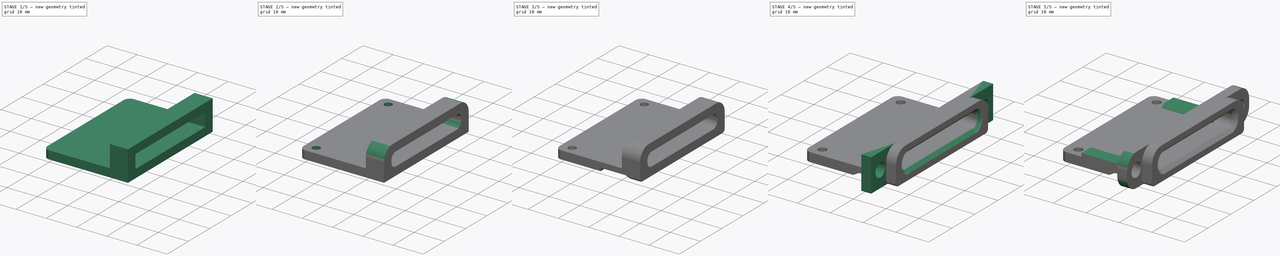
[diagram: build sequence overview — one tinted view per stage of 5, left to right]
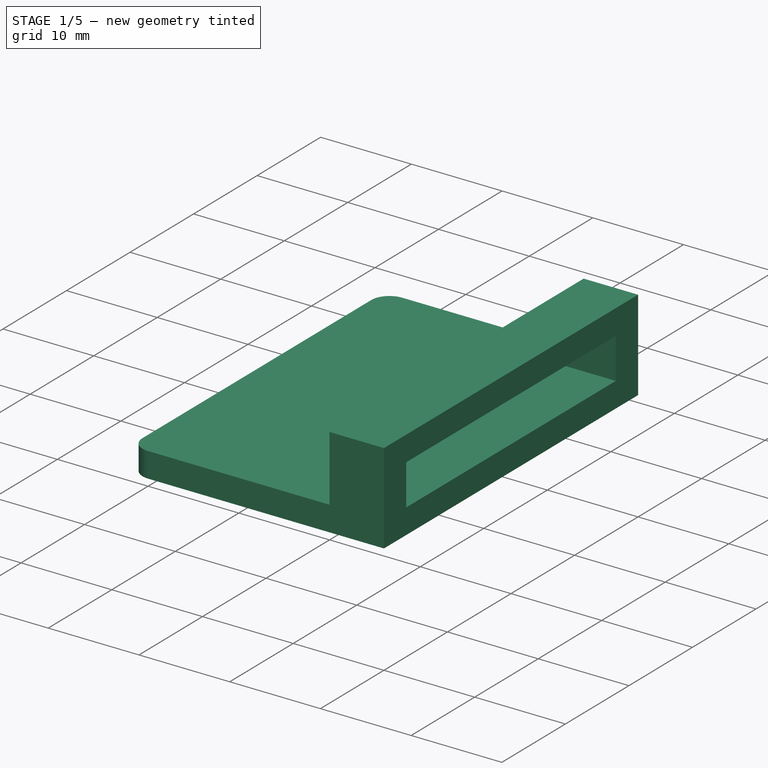
[diagram: stage 1 of 5 — iso view after this stage's code; geometry added in this stage tinted green]
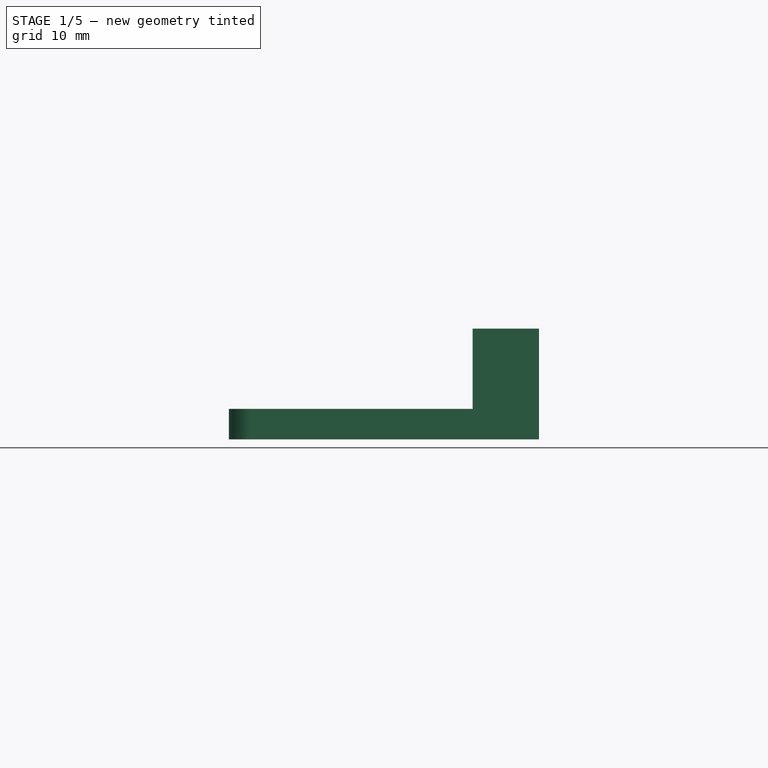
[diagram: stage 1 of 5 — front view after this stage's code; geometry added in this stage tinted green]
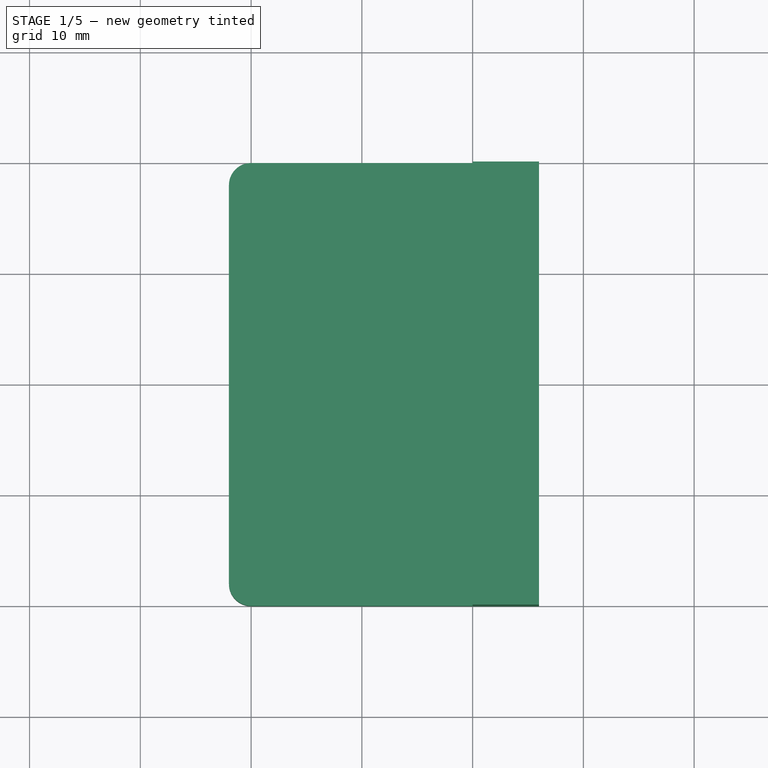
[diagram: stage 1 of 5 — top view after this stage's code; geometry added in this stage tinted green]
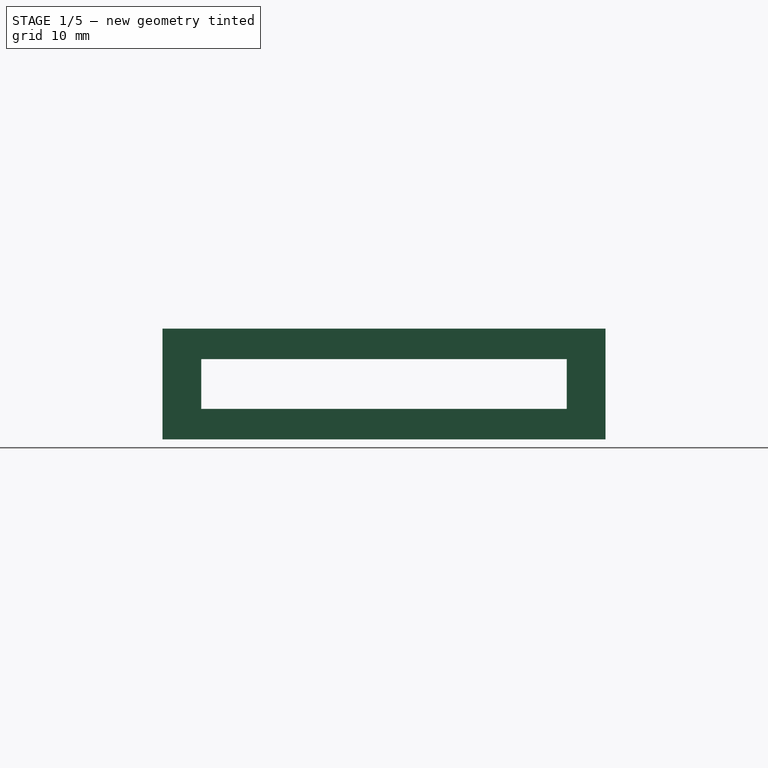
[diagram: stage 1 of 5 — right view after this stage's code; geometry added in this stage tinted green]
FCSTD DOCUMENT  (FreeCAD 2024.113R14555 (Git shallow))
Label: SD-Card-Adaptator
License: All rights reserved
LicenseURL: https://en.wikipedia.org/wiki/All_rights_reserved
objects: Sketcher::SketchObject×6, PartDesign::Fillet×5, PartDesign::Pad×4, Part::Feature×3, App::Part×2, Part::SubShapeBinder×2, PartDesign::Pocket×2, PartDesign::Draft×2, PartDesign::Chamfer×2, PartDesign::Body×1
note: 63 computed .brp shape members not serialized (recipe doc carries the construction recipe); baked Part::Feature solids carry a one-line shape summary decoded from their .brp

FEATURE [Part::Feature] Compound  label="Micro SD to SD Card Extension Adapter Cable"
  FixShape = 1
  InvalidShape = false
  Placement = pos=(22.6,-1.7808,1.15) rot=(0.707107,-0.707107,0;3.14159rad)
  TreeRank = 6
  ValidateShape = false
  shape: bbox 136.9 x 21 x 1.702 mm, 54 faces, 4 solids (baked)
FEATURE [Part::Feature] Solid  label="Micro SD to SD Card Extension Adapter Cable - Part 01"
  FixShape = 1
  InvalidShape = false
  Placement = pos=(0,0,0) rot=(0,0,1;1.5708rad)
  TreeRank = 7
  ValidateShape = false
  shape: bbox 8.5 x 30.8 x 1.901 mm, 25 faces (baked)
FEATURE [Part::Feature] Compound001  label="SD Card Slot"
  FixShape = 1
  InvalidShape = false
  Placement = pos=(-2.82909,-1.1152,-46.9) rot=(0,0,1;0rad)
  TreeRank = 8
  ValidateShape = false
  shape: bbox 36.5 x 39.5 x 3.6 mm, 614 faces, 14 solids (baked)
FEATURE [App::Part] Part  label="Micro SD to SD Card Extension Adapter Cable"
  ClaimAllChildren = false
  ExportMode = 1
  Group = -> [Compound,Solid,Compound001]
  Origin = -> Origin
  TreeRank = 10
  _ExportChildren = -> [Compound,Solid,Compound001]
  _GroupVersion = 1
FEATURE [Sketcher::SketchObject] Sketch
  ArcFitTolerance = 1e-06
  AttachmentSupport = -> [YZ_Plane001]
  ExternalBSplineMaxDegree = 5
  ExternalBSplineTolerance = 0.0001
  FixShape = 1
  FullyConstrained = true
  InternalTolerance = 1e-06
  InvalidShape = false
  MakeInternals = false
  MapMode = 5
  Placement = pos=(0,0,0) rot=(0.57735,0.57735,0.57735;2.0944rad)
  Support = -> [YZ_Plane001]
  TreeRank = 33
  ValidateShape = false
  sketch-geometry (10):
    g0: LineSegment StartX=-16.5 StartY=2.25 StartZ=0 EndX=-16.5 EndY=-2.25 EndZ=0
    g1: LineSegment StartX=-16.5 StartY=-2.25 StartZ=0 EndX=16.5 EndY=-2.25 EndZ=0
    g2: LineSegment StartX=16.5 StartY=-2.25 StartZ=0 EndX=16.5 EndY=2.25 EndZ=0
    g3: LineSegment StartX=16.5 StartY=2.25 StartZ=0 EndX=-16.5 EndY=2.25 EndZ=0
    g4: GeomPoint [constr] X=0 Y=0 Z=0
    g5: LineSegment StartX=-20 StartY=-5 StartZ=0 EndX=-20 EndY=5 EndZ=0
    g6: LineSegment StartX=-20 StartY=5 StartZ=0 EndX=20 EndY=5 EndZ=0
    g7: LineSegment StartX=20 StartY=5 StartZ=0 EndX=20 EndY=-5 EndZ=0
    g8: LineSegment StartX=20 StartY=-5 StartZ=0 EndX=-20 EndY=-5 EndZ=0
    g9: GeomPoint [constr] X=0 Y=0 Z=0
  constraints (24):
    c: Coincident(g0,g1)
    c: Coincident(g1,g2)
    c: Coincident(g2,g3)
    c: Coincident(g3,g0)
    c: Horizontal(g1)
    c: Horizontal(g3)
    c: Vertical(g0)
    c: Vertical(g2)
    c: Symmetric(g1,g0,g4)
    c: Coincident(g4,g-1)
    c: DistanceY(g2,g2) = 4.5
    c: DistanceX(g3,g3) = 33
    c: Coincident(g5,g6)
    c: Coincident(g6,g7)
    c: Coincident(g7,g8)
    c: Coincident(g8,g5)
    c: Horizontal(g6)
    c: Horizontal(g8)
    c: Vertical(g5)
    c: Vertical(g7)
    c: Symmetric(g6,g5,g9)
    c: Coincident(g9,g4)
    c: DistanceX(g6,g6) = 40
    c: DistanceY(g7,g7) = 10
FEATURE [PartDesign::Pad] Pad
  AddSubType = 0
  AlongSketchNormal = false
  AutoTaperInnerAngle = true
  CheckUpToFaceLimits = true
  ClaimChildren = false
  Direction = (1,-2e-16,3e-16)
  Fit = 0
  FitJoin = 0
  FixShape = 1
  InnerFit = 0
  InnerFitJoin = 0
  InvalidShape = false
  Length = 6
  Length2 = 10
  Linearize = true
  NewSolid = false
  Profile = -> Sketch
  ReferenceAxis = -> Sketch [N_Axis]
  Refine = true
  Suppress = false
  TaperInnerAngle = 0
  TaperInnerAngleRev = 0
  TreeRank = 34
  Type = 0
  ValidateShape = true
  _ProfileBasedVersion = 1
FEATURE [Sketcher::SketchObject] Sketch001
  ArcFitTolerance = 1e-06
  AttachmentSupport = -> [Pad]
  ExternalBSplineMaxDegree = 5
  ExternalBSplineTolerance = 0.0001
  ExternalGeometry = -> [Pad]
  FixShape = 1
  FullyConstrained = true
  InternalTolerance = 1e-06
  InvalidShape = false
  MakeInternals = false
  MapMode = 5
  Placement = pos=(0,0,0) rot=(0.57735,-0.57735,-0.57735;2.0944rad)
  Support = -> [Pad]
  TreeRank = 35
  ValidateShape = false
  sketch-geometry (4):
    g0: LineSegment StartX=-20 StartY=-5 StartZ=0 EndX=20 EndY=-5 EndZ=0
    g1: LineSegment StartX=20 StartY=-5 StartZ=0 EndX=20 EndY=-2.25 EndZ=0
    g2: LineSegment StartX=20 StartY=-2.25 StartZ=0 EndX=-20 EndY=-2.25 EndZ=0
    g3: LineSegment StartX=-20 StartY=-2.25 StartZ=0 EndX=-20 EndY=-5 EndZ=0
  constraints (10):
    c: Coincident(g0,g1)
    c: Coincident(g1,g2)
    c: Coincident(g2,g3)
    c: Coincident(g3,g0)
    c: Horizontal(g2)
    c: Vertical(g1)
    c: Vertical(g3)
    c: Coincident(g0,g-3)
    c: Coincident(g-3,g0)
    c: DistanceY(g1,g1) = 2.75
FEATURE [PartDesign::Pad] Pad001
  AddSubType = 0
  AlongSketchNormal = false
  AutoTaperInnerAngle = true
  BaseFeature = -> Pad
  CheckUpToFaceLimits = true
  ClaimChildren = false
  Direction = (-1,1e-16,-1e-16)
  Fit = 0
  FitJoin = 0
  FixShape = 1
  InnerFit = 0
  InnerFitJoin = 0
  InvalidShape = false
  Length = 22
  Length2 = 10
  Linearize = true
  NewSolid = false
  Profile = -> Sketch001
  ReferenceAxis = -> Sketch001 [N_Axis]
  Refine = true
  Suppress = false
  TaperInnerAngle = 0
  TaperInnerAngleRev = 0
  TreeRank = 36
  Type = 0
  ValidateShape = true
  _ProfileBasedVersion = 1
FEATURE [PartDesign::Fillet] Fillet
  AddSubType = 0
  Base = -> Pad001 [Edge24,Edge28]
  BaseFeature = -> Pad001
  FixShape = 1
  InvalidShape = false
  NewSolid = false
  Radius = 2
  Refine = true
  SupportTransform = false
  Suppress = false
  TreeRank = 37
  UseAllEdges = false
  ValidateShape = true
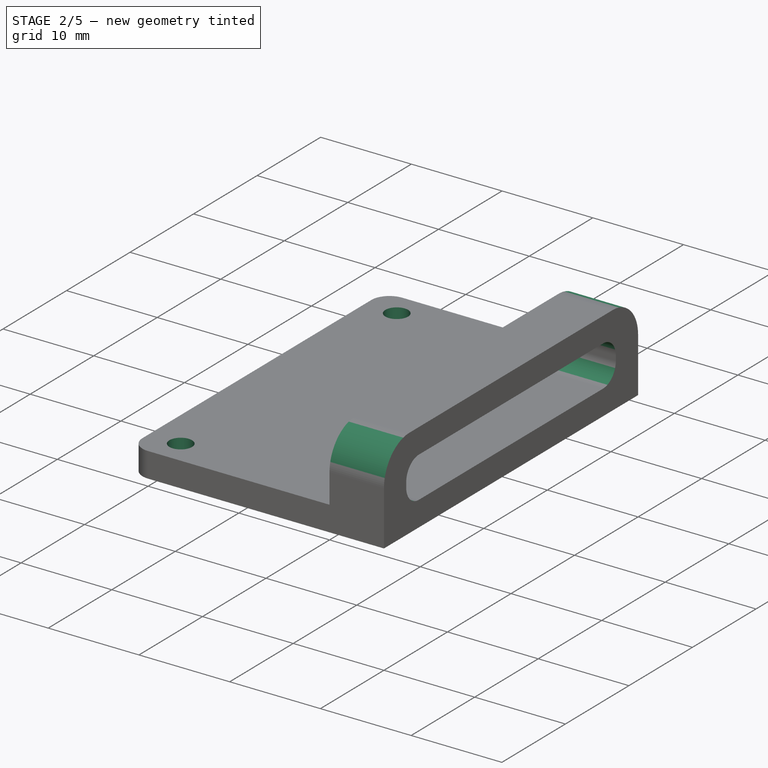
[diagram: stage 2 of 5 — iso view after this stage's code; geometry added in this stage tinted green]
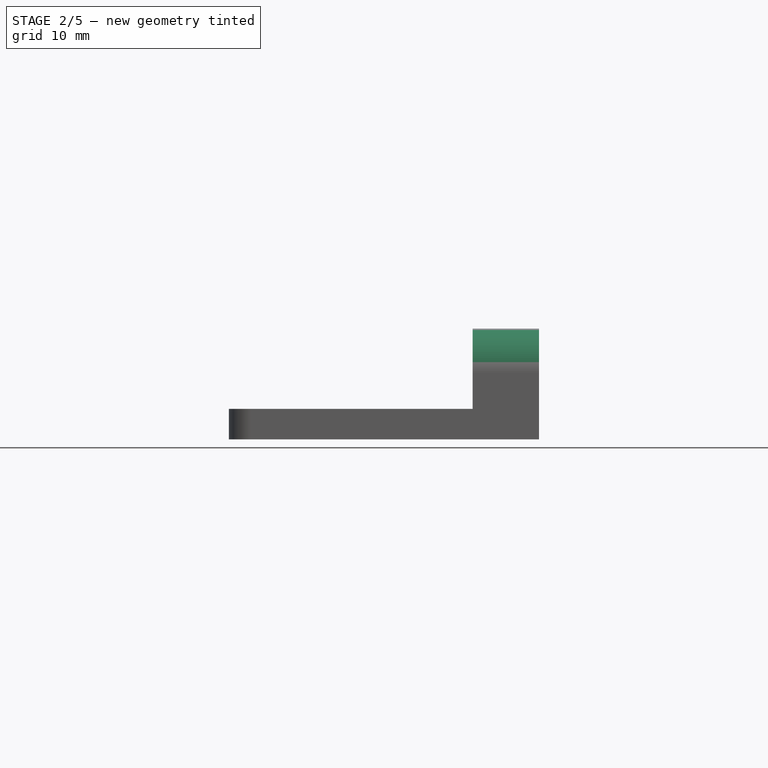
[diagram: stage 2 of 5 — front view after this stage's code; geometry added in this stage tinted green]
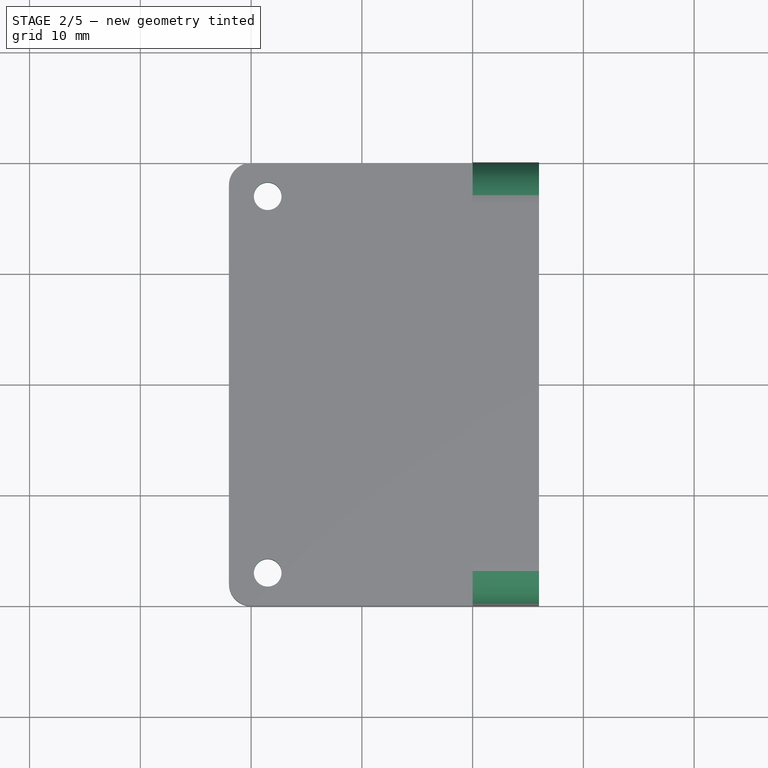
[diagram: stage 2 of 5 — top view after this stage's code; geometry added in this stage tinted green]
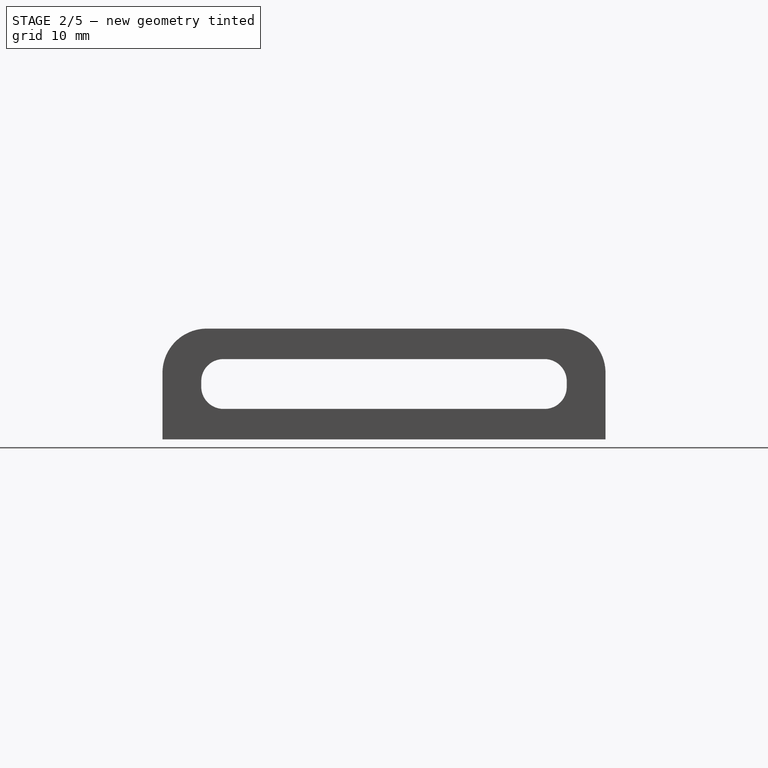
[diagram: stage 2 of 5 — right view after this stage's code; geometry added in this stage tinted green]
FEATURE [Part::SubShapeBinder] Import  label="Import(SD Card Slot)"
  BindCopyOnChange = 0
  BindMode = 0
  ClaimChildren = false
  Context = -> Part001 [Body.Import.]
  EdgeTolerance = 1e-06
  FillStyle = 0
  FixShape = 1
  Fuse = false
  InvalidShape = false
  MakeFace = false
  MergeEdges = true
  OffsetFill = false
  OffsetIntersection = false
  OffsetJoinType = 0
  OffsetOpenResult = false
  Outline = false
  PartialLoad = false
  Relative = true
  SplitEdges = false
  Support = -> [Part[Compound001.Edge1450]]
  TightBound = false
  TreeRank = 39
  ValidateShape = false
  _Version = 8
FEATURE [Sketcher::SketchObject] Sketch002
  ArcFitTolerance = 1e-06
  ExternalBSplineMaxDegree = 5
  ExternalBSplineTolerance = 0.0001
  ExternalGeometry = -> [Import]
  FixShape = 1
  FullyConstrained = true
  InternalTolerance = 1e-06
  InvalidShape = false
  MakeInternals = false
  Placement = pos=(2e-16,-2e-16,-2.25) rot=(0,0,1;0rad)
  TreeRank = 38
  ValidateShape = false
  sketch-geometry (2):
    g0: Circle CenterX=-18.5 CenterY=17 CenterZ=0 NormalX=0 NormalY=0 NormalZ=1 AngleXU=0 Radius=1.25
    g1: Circle CenterX=-18.5 CenterY=-17 CenterZ=0 NormalX=0 NormalY=0 NormalZ=1 AngleXU=0 Radius=1.25
  constraints (4):
    c: Coincident(g0,g-3)
    c: Symmetric(g1,g0,g-1)
    c: Equal(g0,g1)
    c: Diameter(g0) = 2.5
FEATURE [PartDesign::Fillet] Fillet001
  AddSubType = 0
  Base = -> Fillet [Edge5,Edge27]
  BaseFeature = -> Fillet
  FixShape = 1
  InvalidShape = false
  NewSolid = false
  Radius = 4
  Refine = true
  SupportTransform = false
  Suppress = false
  TreeRank = 40
  UseAllEdges = false
  ValidateShape = true
FEATURE [PartDesign::Fillet] Fillet002
  AddSubType = 0
  Base = -> Fillet001 [Edge38,Edge40,Edge24,Edge20]
  BaseFeature = -> Fillet001
  FixShape = 1
  InvalidShape = false
  NewSolid = false
  Radius = 2
  Refine = true
  SupportTransform = false
  Suppress = false
  TreeRank = 41
  UseAllEdges = false
  ValidateShape = true
FEATURE [PartDesign::Pocket] Pocket
  AddSubType = 1
  AlongSketchNormal = false
  AutoTaperInnerAngle = true
  BaseFeature = -> Fillet002
  CheckUpToFaceLimits = true
  ClaimChildren = false
  Direction = (1e-16,-1e-16,-1)
  Fit = 0
  FitJoin = 0
  FixShape = 1
  InnerFit = 0
  InnerFitJoin = 0
  InvalidShape = false
  Length = 5
  Length2 = 10
  Linearize = true
  NewSolid = false
  Profile = -> Sketch002
  ReferenceAxis = -> Sketch002 [N_Axis]
  Refine = true
  Suppress = false
  TaperInnerAngle = 0
  TaperInnerAngleRev = 0
  TreeRank = 42
  Type = 1
  ValidateShape = true
  _ProfileBasedVersion = 1
  _Version = 1
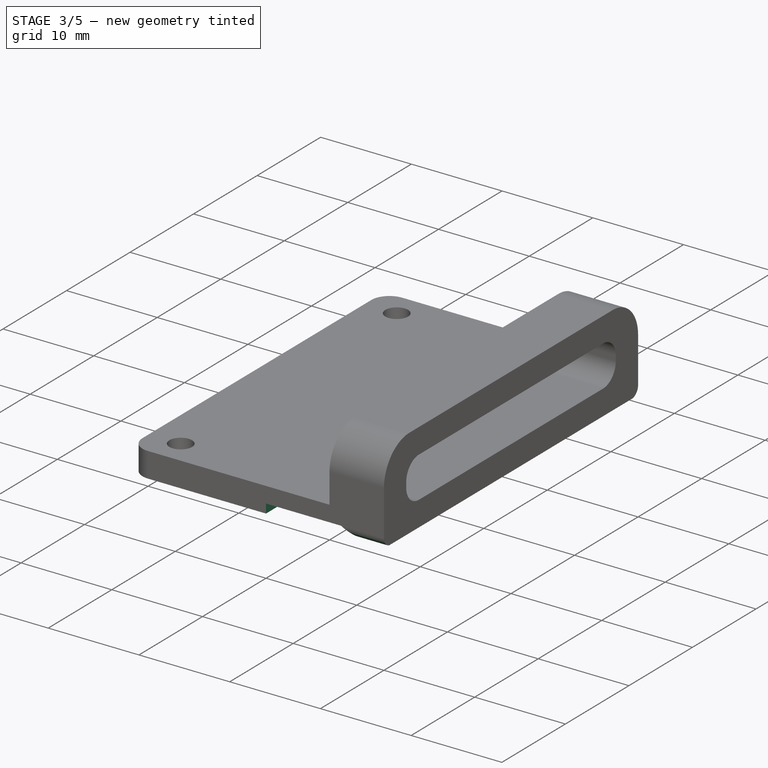
[diagram: stage 3 of 5 — iso view after this stage's code; geometry added in this stage tinted green]
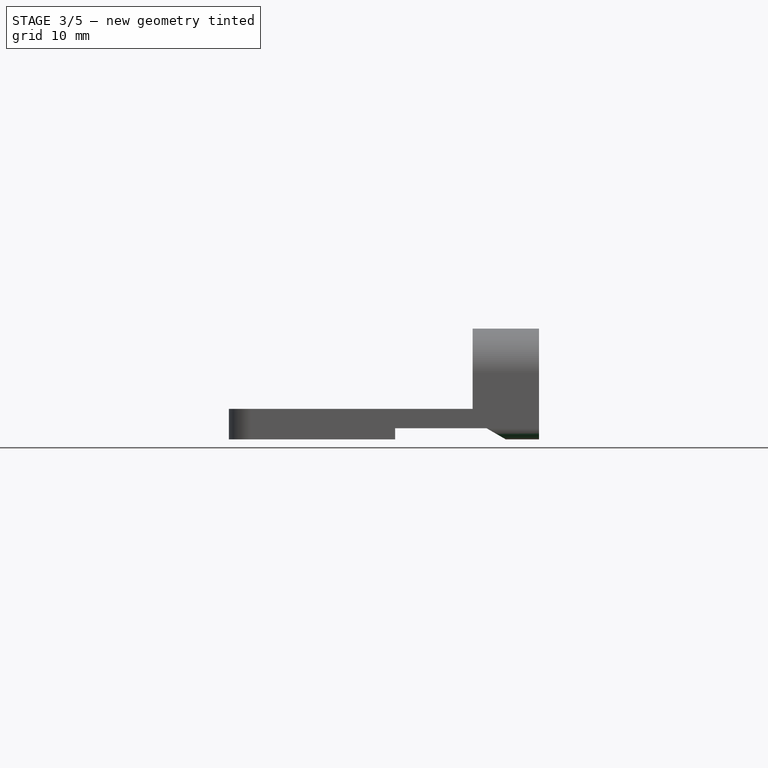
[diagram: stage 3 of 5 — front view after this stage's code; geometry added in this stage tinted green]
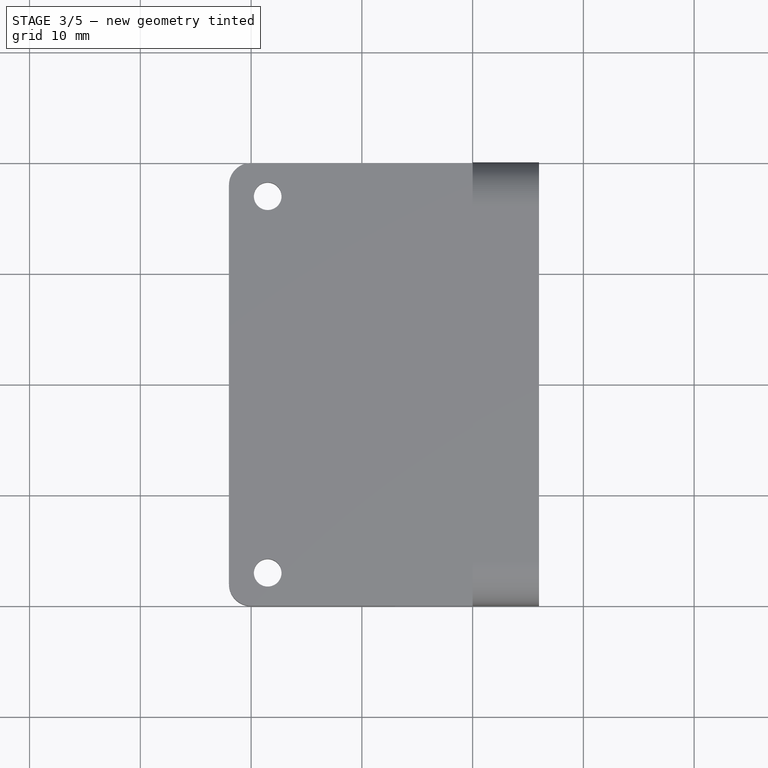
[diagram: stage 3 of 5 — top view after this stage's code; geometry added in this stage tinted green]
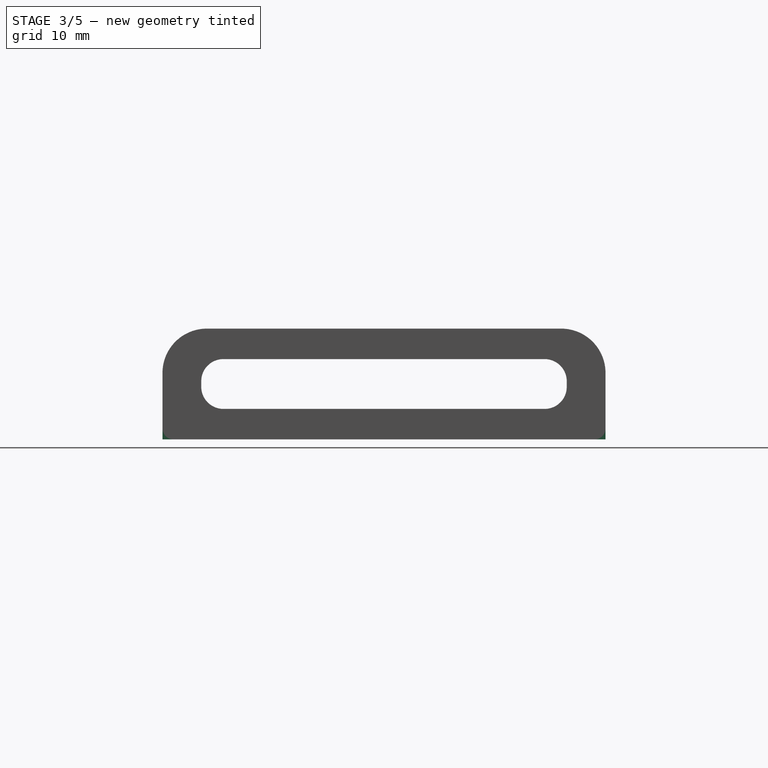
[diagram: stage 3 of 5 — right view after this stage's code; geometry added in this stage tinted green]
FEATURE [Sketcher::SketchObject] Sketch004
  ArcFitTolerance = 1e-06
  AttachmentSupport = -> [Pocket]
  ExternalBSplineMaxDegree = 5
  ExternalBSplineTolerance = 0.0001
  ExternalGeometry = -> [Pocket]
  FixShape = 1
  FullyConstrained = true
  InternalTolerance = 1e-06
  InvalidShape = false
  MakeInternals = false
  MapMode = 5
  Placement = pos=(0,0,-5) rot=(1,0,0;3.14159rad)
  Support = -> [Pocket]
  TreeRank = 44
  ValidateShape = false
  sketch-geometry (4):
    g0: LineSegment StartX=3 StartY=20 StartZ=0 EndX=-7 EndY=20 EndZ=0
    g1: LineSegment StartX=-7 StartY=20 StartZ=0 EndX=-7 EndY=-20 EndZ=0
    g2: LineSegment StartX=-7 StartY=-20 StartZ=0 EndX=3 EndY=-20 EndZ=0
    g3: LineSegment StartX=3 StartY=-20 StartZ=0 EndX=3 EndY=20 EndZ=0
  constraints (12):
    c: Coincident(g0,g1)
    c: Coincident(g1,g2)
    c: Coincident(g2,g3)
    c: Coincident(g3,g0)
    c: Horizontal(g0)
    c: Horizontal(g2)
    c: Vertical(g1)
    c: Vertical(g3)
    c: PointOnObject(g0,g-3)
    c: PointOnObject(g2,g-4)
    c: DistanceX(g0,g-3) = 3
    c: DistanceX(g0,g0) = 10
FEATURE [PartDesign::Pocket] Pocket001
  AddSubType = 1
  AlongSketchNormal = false
  AutoTaperInnerAngle = true
  BaseFeature = -> Pocket
  CheckUpToFaceLimits = true
  ClaimChildren = false
  Direction = (0,0,1)
  Fit = 0
  FitJoin = 0
  FixShape = 1
  InnerFit = 0
  InnerFitJoin = 0
  InvalidShape = false
  Length = 1
  Length2 = 10
  Linearize = true
  NewSolid = false
  Profile = -> Sketch004
  ReferenceAxis = -> Sketch004 [N_Axis]
  Refine = true
  Suppress = false
  TaperInnerAngle = 0
  TaperInnerAngleRev = 0
  TreeRank = 45
  Type = 0
  ValidateShape = true
  _ProfileBasedVersion = 1
  _Version = 1
FEATURE [PartDesign::Fillet] Fillet003
  AddSubType = 0
  Base = -> Pocket001 [Edge41,Edge59]
  BaseFeature = -> Pocket001
  FixShape = 1
  InvalidShape = false
  NewSolid = false
  Radius = 1
  Refine = true
  SupportTransform = false
  Suppress = false
  TreeRank = 46
  UseAllEdges = false
  ValidateShape = true
FEATURE [PartDesign::Draft] Draft
  AddSubType = 0
  Angle = 60
  Base = -> Fillet003 [Face23]
  BaseFeature = -> Fillet003
  FixShape = 1
  InvalidShape = false
  NeutralPlane = -> Fillet003 [Face11]
  NewSolid = false
  Refine = true
  SupportTransform = false
  Suppress = false
  TreeRank = 47
  ValidateShape = true
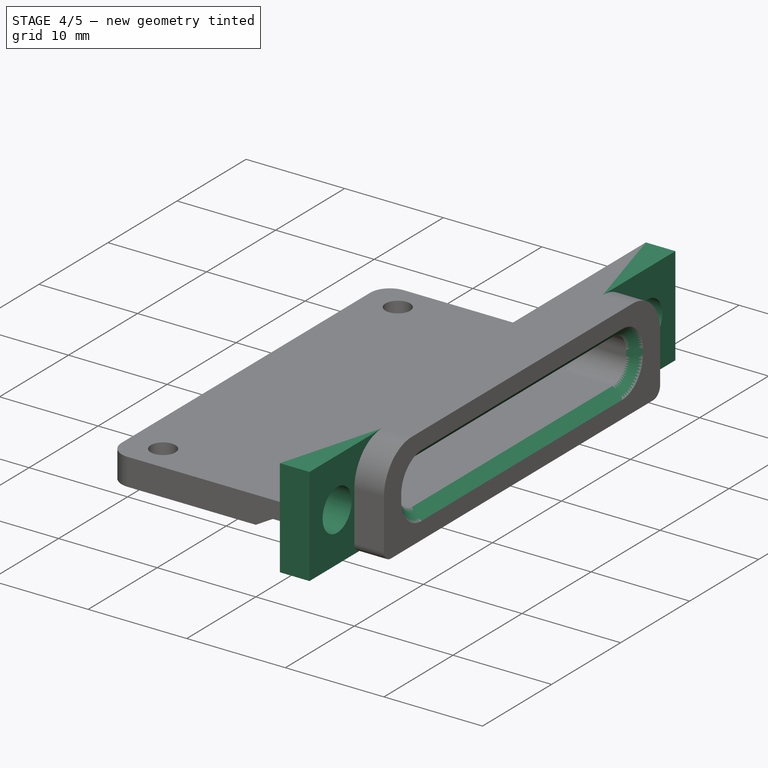
[diagram: stage 4 of 5 — iso view after this stage's code; geometry added in this stage tinted green]
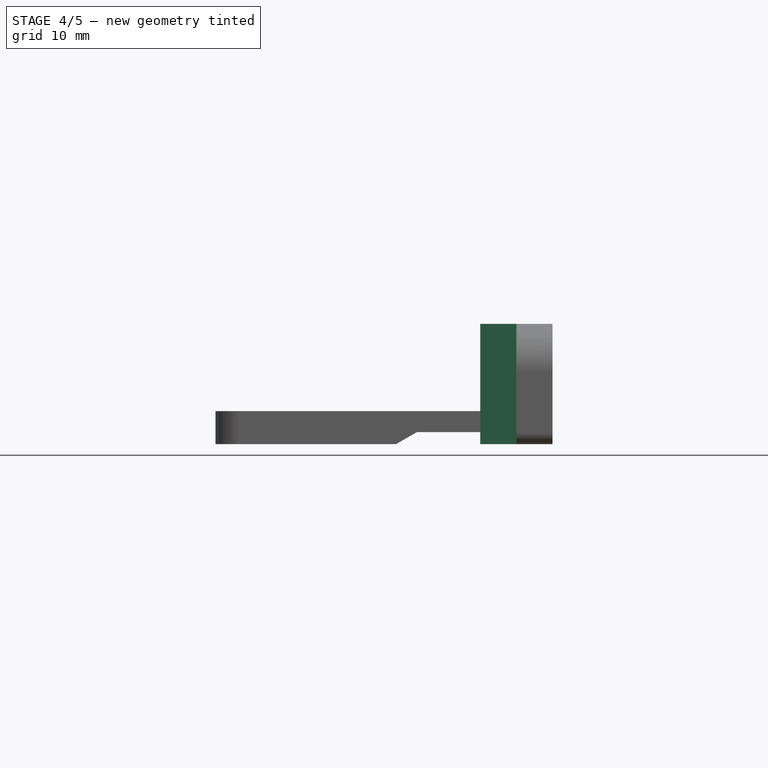
[diagram: stage 4 of 5 — front view after this stage's code; geometry added in this stage tinted green]
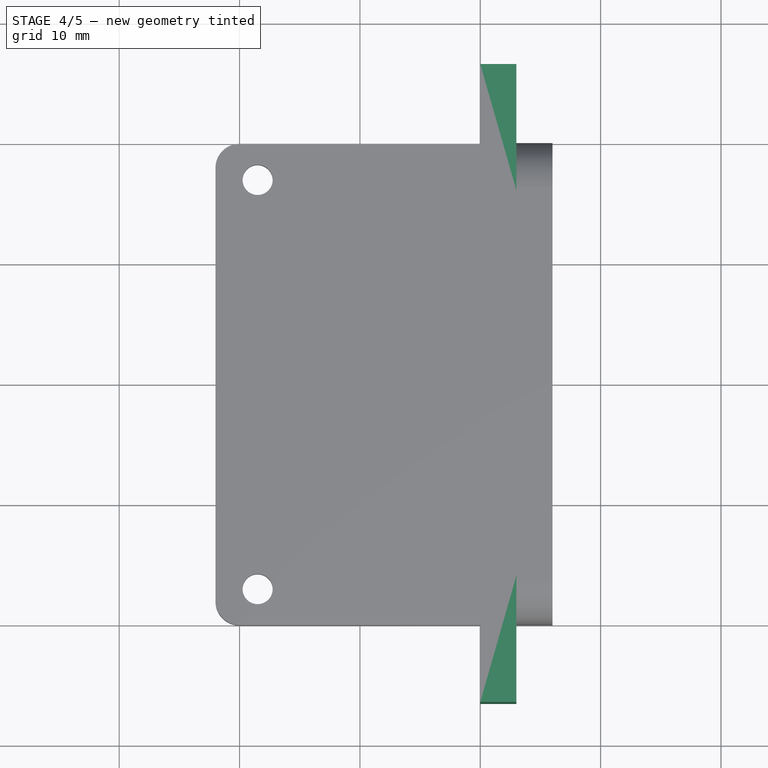
[diagram: stage 4 of 5 — top view after this stage's code; geometry added in this stage tinted green]
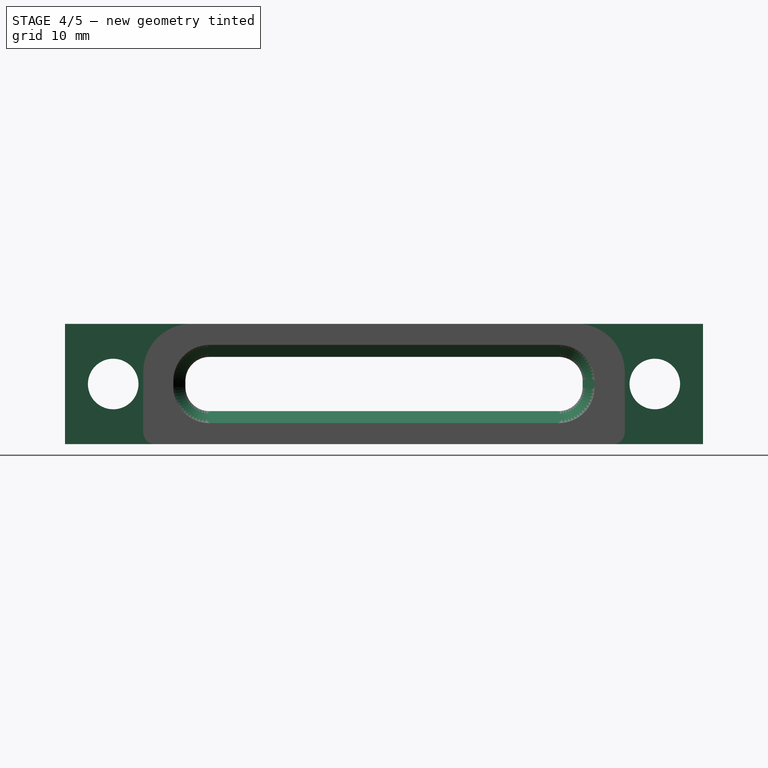
[diagram: stage 4 of 5 — right view after this stage's code; geometry added in this stage tinted green]
FEATURE [PartDesign::Draft] Draft001
  AddSubType = 0
  Angle = 60
  Base = -> Draft [Face7]
  BaseFeature = -> Draft
  FixShape = 1
  InvalidShape = false
  NeutralPlane = -> Draft [Face9]
  NewSolid = false
  Refine = true
  SupportTransform = false
  Suppress = false
  TreeRank = 48
  ValidateShape = true
FEATURE [PartDesign::Chamfer] Chamfer001
  AddSubType = 0
  Angle = 45
  Base = -> Draft001 [Edge19]
  BaseFeature = -> Draft001
  ChamferType = 0
  FixShape = 1
  FlipDirection = false
  InvalidShape = false
  NewSolid = false
  Refine = true
  Size = 1
  Size2 = 1
  SupportTransform = false
  Suppress = false
  TreeRank = 51
  UseAllEdges = false
  ValidateShape = true
FEATURE [Sketcher::SketchObject] Sketch005
  ArcFitTolerance = 1e-06
  AttachmentSupport = -> [Chamfer001]
  ExternalBSplineMaxDegree = 5
  ExternalBSplineTolerance = 0.0001
  ExternalGeometry = -> [Chamfer001]
  FixShape = 1
  FullyConstrained = true
  InternalTolerance = 1e-06
  InvalidShape = false
  MakeInternals = false
  MapMode = 5
  Placement = pos=(0,0,0) rot=(0.57735,-0.57735,-0.57735;2.0944rad)
  Support = -> [Chamfer001]
  TreeRank = 52
  ValidateShape = false
  sketch-geometry (8):
    g0: Circle CenterX=22.5 CenterY=0 CenterZ=0 NormalX=0 NormalY=0 NormalZ=1 AngleXU=0 Radius=2.1
    g1: Circle CenterX=-22.5 CenterY=0 CenterZ=0 NormalX=0 NormalY=0 NormalZ=1 AngleXU=0 Radius=2.1
    g2: LineSegment StartX=-26.5 StartY=-5 StartZ=0 EndX=-26.5 EndY=5 EndZ=0
    g3: LineSegment StartX=-26.5 StartY=5 StartZ=0 EndX=26.5 EndY=5 EndZ=0
    g4: LineSegment StartX=26.5 StartY=5 StartZ=0 EndX=26.5 EndY=-5 EndZ=0
    g5: LineSegment StartX=26.5 StartY=-5 StartZ=0 EndX=-26.5 EndY=-5 EndZ=0
    g6: GeomPoint [constr] X=0 Y=0 Z=0
    g7: LineSegment StartX=14.5 StartY=-2.25 StartZ=0 EndX=-14.5 EndY=-2.25 EndZ=0
  constraints (19):
    c: PointOnObject(g0,g-1)
    c: Equal(g0,g1)
    c: Diameter(g0) = 4.2
    c: Symmetric(g0,g1,g-1)
    c: DistanceX(g1,g0) = 45
    c: Coincident(g2,g3)
    c: Coincident(g3,g4)
    c: Coincident(g4,g5)
    c: Coincident(g5,g2)
    c: Horizontal(g3)
    c: Horizontal(g5)
    c: Vertical(g2)
    c: Vertical(g4)
    c: Symmetric(g3,g2,g6)
    c: Coincident(g6,g-1)
    c: PointOnObject(g-3,g3)
    c: DistanceX(g0,g3) = 4
    c: Coincident(g7,g-10)
    c: Coincident(g7,g-5)
FEATURE [Part::SubShapeBinder] Import001  label="Import001(SD Card Slot)"
  BindCopyOnChange = 0
  BindMode = 0
  ClaimChildren = false
  Context = -> Part001 [Body.Import001.]
  EdgeTolerance = 1e-06
  FillStyle = 0
  FixShape = 1
  Fuse = false
  InvalidShape = false
  MakeFace = false
  MergeEdges = true
  OffsetFill = false
  OffsetIntersection = false
  OffsetJoinType = 0
  OffsetOpenResult = false
  Outline = false
  PartialLoad = false
  Relative = true
  SplitEdges = false
  Support = -> [Part[Compound001.Edge1458]]
  TightBound = false
  TreeRank = 53
  ValidateShape = false
  _Version = 8
FEATURE [PartDesign::Pad] Pad002
  AddSubType = 0
  AlongSketchNormal = false
  AutoTaperInnerAngle = true
  BaseFeature = -> Chamfer001
  CheckUpToFaceLimits = true
  ClaimChildren = false
  Direction = (-1,1e-16,-1e-16)
  Fit = 0
  FitJoin = 0
  FixShape = 1
  InnerFit = 0
  InnerFitJoin = 0
  InvalidShape = false
  Length = 3
  Length2 = 10
  Linearize = true
  NewSolid = false
  Profile = -> Sketch005
  ReferenceAxis = -> Sketch005 [N_Axis]
  Refine = true
  Reversed = true
  Suppress = false
  TaperInnerAngle = 0
  TaperInnerAngleRev = 0
  TreeRank = 54
  Type = 0
  ValidateShape = true
  _ProfileBasedVersion = 1
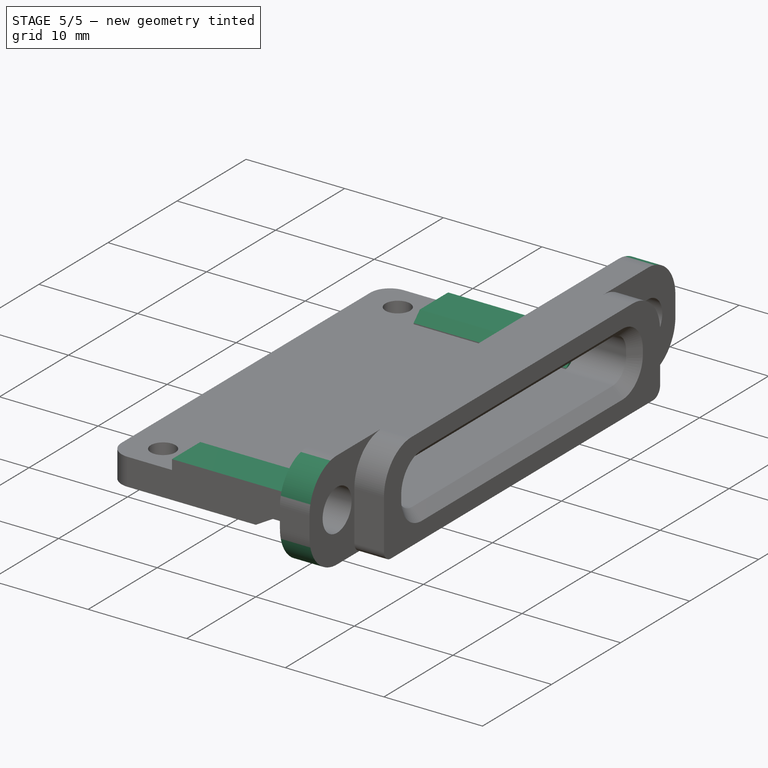
[diagram: stage 5 of 5 — iso view after this stage's code; geometry added in this stage tinted green]
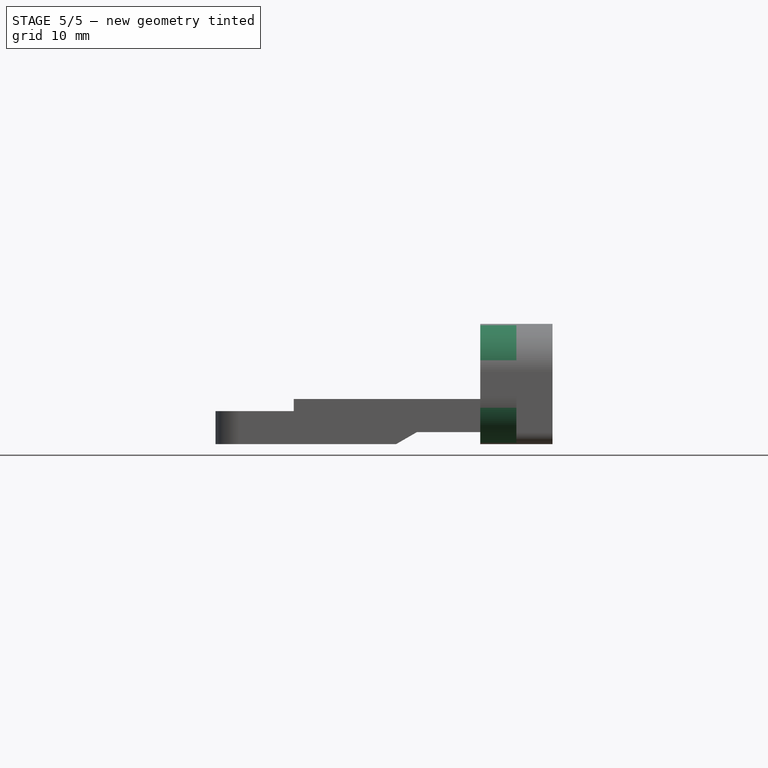
[diagram: stage 5 of 5 — front view after this stage's code; geometry added in this stage tinted green]
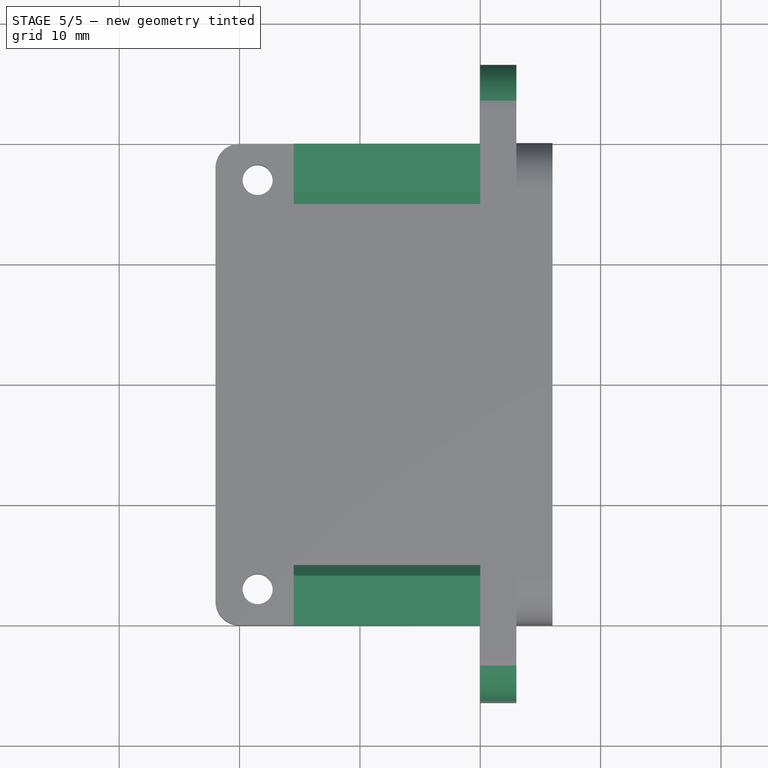
[diagram: stage 5 of 5 — top view after this stage's code; geometry added in this stage tinted green]
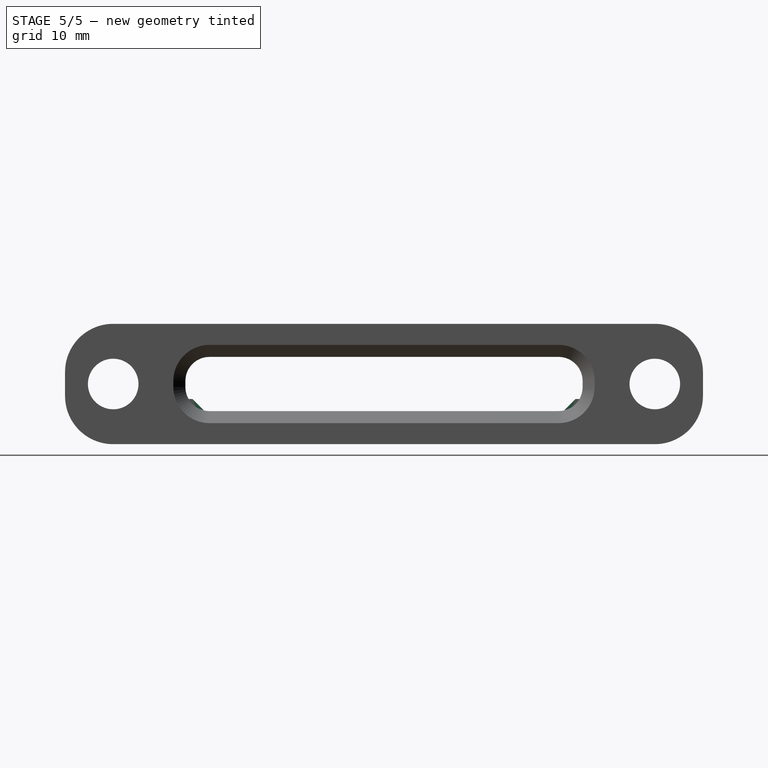
[diagram: stage 5 of 5 — right view after this stage's code; geometry added in this stage tinted green]
FEATURE [PartDesign::Fillet] Fillet004
  AddSubType = 0
  Base = -> Pad002 [Edge88,Edge89,Edge94,Edge93]
  BaseFeature = -> Pad002
  FixShape = 1
  InvalidShape = false
  NewSolid = false
  Radius = 4
  Refine = true
  SupportTransform = false
  Suppress = false
  TreeRank = 55
  UseAllEdges = false
  ValidateShape = true
FEATURE [Sketcher::SketchObject] Sketch006
  ArcFitTolerance = 1e-06
  AttachmentSupport = -> [Fillet004]
  ExternalBSplineMaxDegree = 5
  ExternalBSplineTolerance = 0.0001
  ExternalGeometry = -> [Fillet004]
  FixShape = 1
  FullyConstrained = true
  InternalTolerance = 1e-06
  InvalidShape = false
  MakeInternals = false
  MapMode = 5
  Placement = pos=(0,0,-2.25) rot=(0,0,1;0rad)
  Support = -> [Fillet004]
  TreeRank = 56
  ValidateShape = false
  sketch-geometry (8):
    g0: LineSegment StartX=0 StartY=20 StartZ=0 EndX=-15.5 EndY=20 EndZ=0
    g1: LineSegment StartX=-15.5 StartY=20 StartZ=0 EndX=-15.5 EndY=15 EndZ=0
    g2: LineSegment StartX=-15.5 StartY=15 StartZ=0 EndX=0 EndY=15 EndZ=0
    g3: LineSegment StartX=0 StartY=15 StartZ=0 EndX=0 EndY=20 EndZ=0
    g4: LineSegment StartX=0 StartY=-15 StartZ=0 EndX=-15.5 EndY=-15 EndZ=0
    g5: LineSegment StartX=-15.5 StartY=-15 StartZ=0 EndX=-15.5 EndY=-20 EndZ=0
    g6: LineSegment StartX=-15.5 StartY=-20 StartZ=0 EndX=0 EndY=-20 EndZ=0
    g7: LineSegment StartX=0 StartY=-20 StartZ=0 EndX=0 EndY=-15 EndZ=0
  constraints (22):
    c: Coincident(g0,g1)
    c: Coincident(g1,g2)
    c: Coincident(g2,g3)
    c: Coincident(g3,g0)
    c: Horizontal(g0)
    c: Horizontal(g2)
    c: Vertical(g1)
    c: Vertical(g3)
    c: PointOnObject(g0,g-2)
    c: Coincident(g4,g5)
    c: Coincident(g5,g6)
    c: Coincident(g6,g7)
    c: Coincident(g7,g4)
    c: Horizontal(g4)
    c: Horizontal(g6)
    c: Vertical(g7)
    c: PointOnObject(g4,g-2)
    c: PointOnObject(g0,g-3)
    c: Symmetric(g1,g4,g-1)
    c: Symmetric(g5,g0,g-1)
    c: DistanceY(g4,g2) = 30
    c: DistanceX(g2,g2) = 15.5
FEATURE [PartDesign::Pad] Pad003
  AddSubType = 0
  AlongSketchNormal = false
  AutoTaperInnerAngle = true
  BaseFeature = -> Fillet004
  CheckUpToFaceLimits = true
  ClaimChildren = false
  Direction = (0,0,1)
  Fit = 0
  FitJoin = 0
  FixShape = 1
  InnerFit = 0
  InnerFitJoin = 0
  InvalidShape = false
  Length = 1
  Length2 = 10
  Linearize = true
  NewSolid = false
  Profile = -> Sketch006
  ReferenceAxis = -> Sketch006 [N_Axis]
  Refine = true
  Suppress = false
  TaperInnerAngle = 0
  TaperInnerAngleRev = 0
  TreeRank = 57
  Type = 0
  ValidateShape = true
  _ProfileBasedVersion = 1
FEATURE [PartDesign::Chamfer] Chamfer
  AddSubType = 0
  Angle = 45
  Base = -> Pad003 [Edge75,Edge100]
  BaseFeature = -> Pad003
  ChamferType = 0
  FixShape = 1
  FlipDirection = false
  InvalidShape = false
  NewSolid = false
  Refine = true
  Size = 0.9
  Size2 = 1
  SupportTransform = false
  Suppress = false
  TreeRank = 58
  UseAllEdges = false
  ValidateShape = true
FEATURE [PartDesign::Body] Body  label="SD-Adaptator"
  AutoGroupSolids = false
  ClaimAllChildren = false
  ExportMode = 0
  FixShape = 1
  Group = -> [Sketch,Pad,Sketch001,Pad001,Fillet,Fillet001,Fillet002,Sketch002,Import,Pocket,Sketch004,Pocket001,Fillet003,Draft,Draft001,Chamfer001,Sketch005,Import001,Pad002,Fillet004,Sketch006,Pad003,Chamfer]
  InvalidShape = false
  Origin = -> Origin001
  Placement = pos=(29.5,0,1.75) rot=(0,0,1;0rad)
  SingleSolid = true
  Tip = -> Chamfer
  TreeRank = 32
  ValidateShape = false
  _ExportChildren = -> [Pad,Pad001,Fillet,Fillet001,Fillet002,Import,Pocket,Pocket001,Fillet003,Draft,Draft001,Chamfer001,Import001,Pad002,Fillet004,Pad003,Chamfer]
  _GroupVersion = 1
FEATURE [App::Part] Part001  label="SD-Adaptator-Assembly"
  ClaimAllChildren = false
  ExportMode = 1
  Group = -> [Part,Body]
  Origin = -> Origin002
  TreeRank = 61
  _ExportChildren = -> [Part,Body]
  _GroupVersion = 1
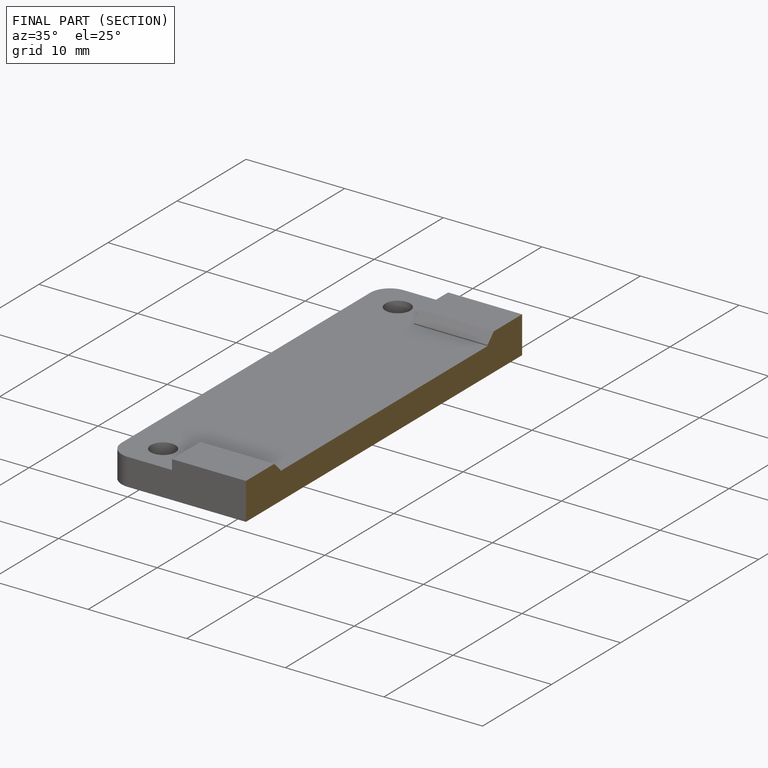
[diagram: finished part — half-section view (interior)]
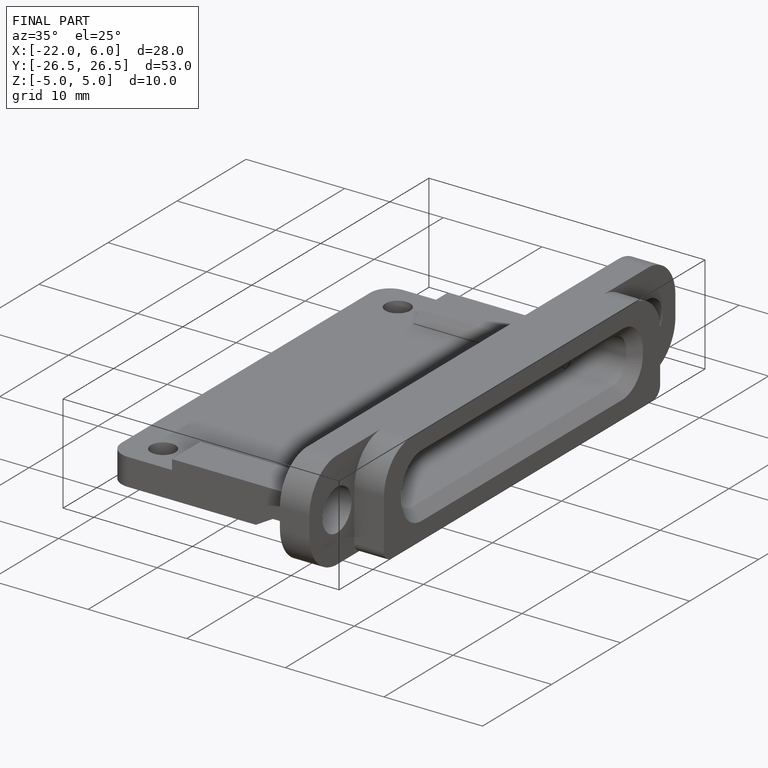
[diagram: finished part — iso view with bounding-box wireframe]
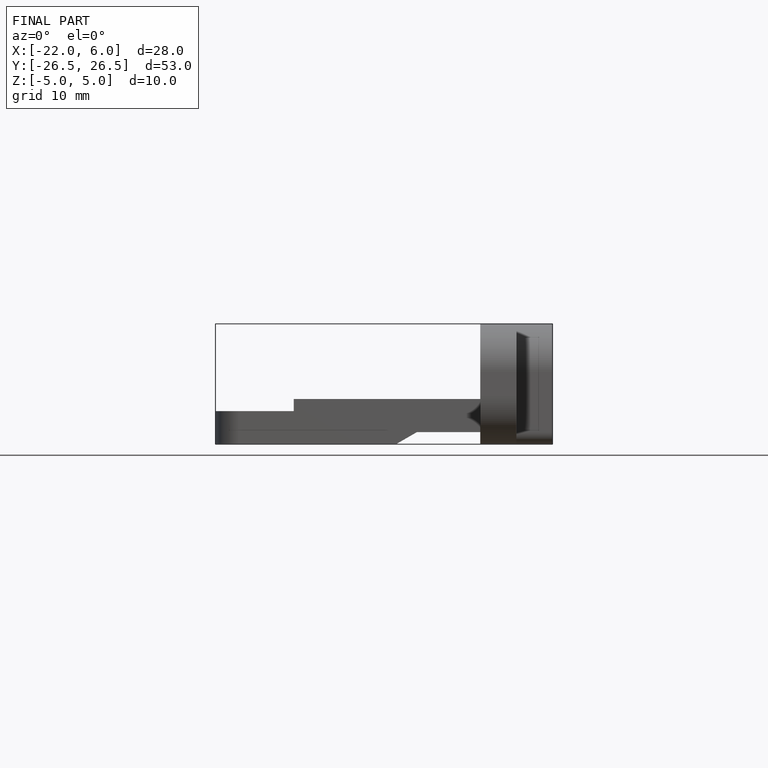
[diagram: finished part — front view with bounding-box wireframe]
